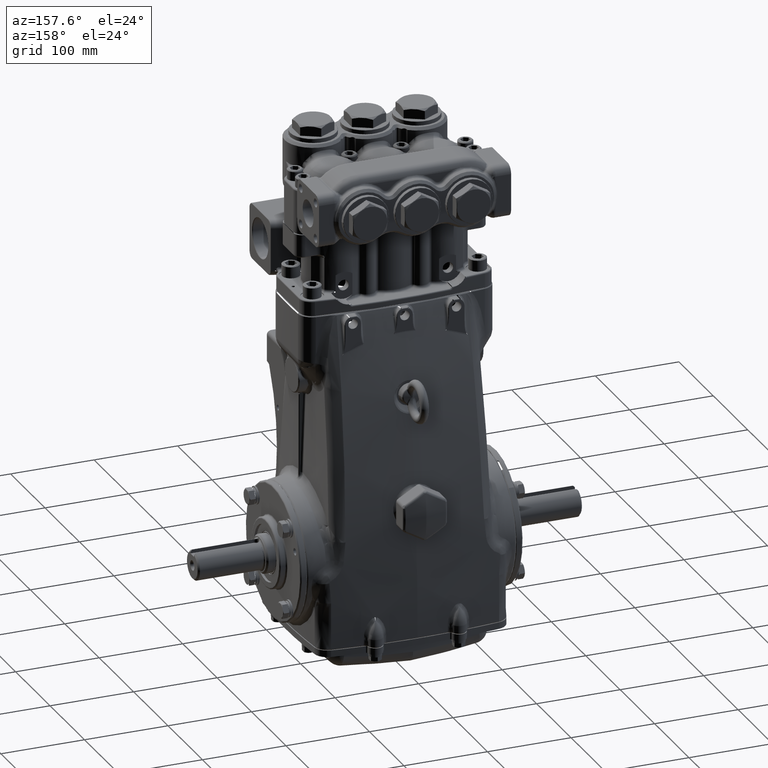
[diagram: clean part render]
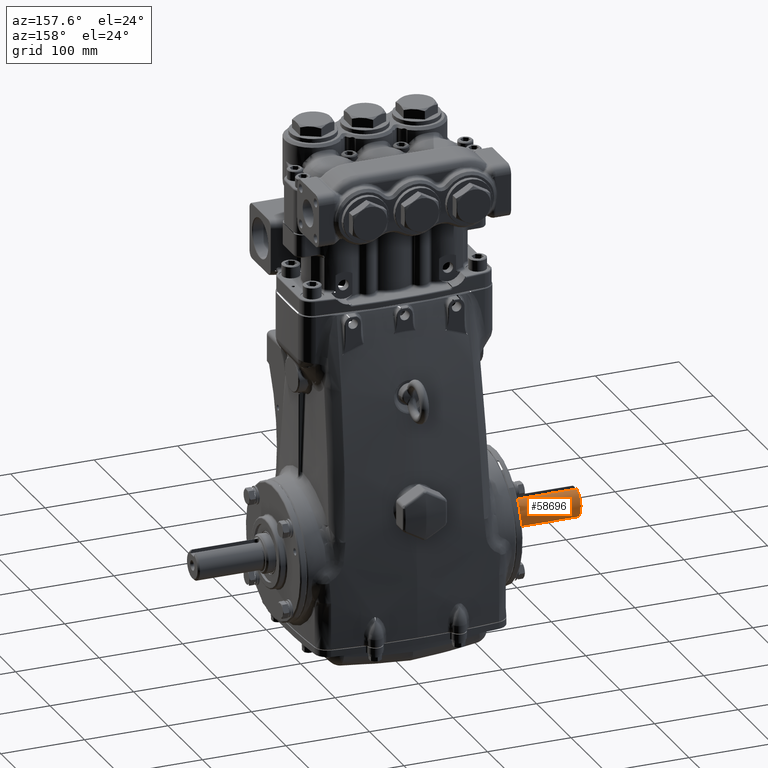
[diagram: same view with one face highlighted and labeled with its STEP entity id]
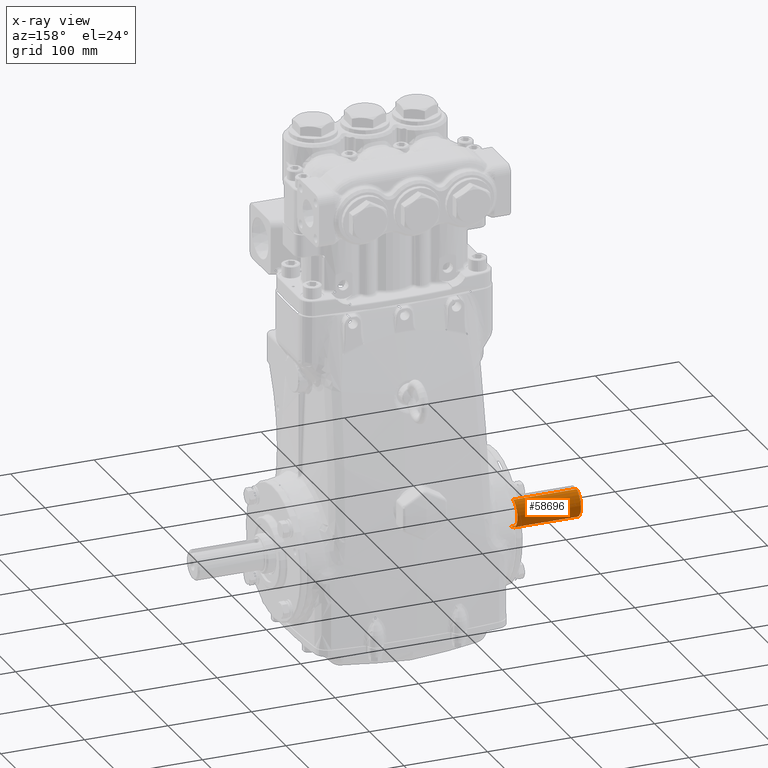
[diagram: x-ray of the same camera — body ghosted, the highlighted face saturated]
A machine part, auxiliary view. The second image highlights one B-rep face of the part: STEP entity #58696.
The next image is the same camera in x-ray: the body ghosted, the highlighted face saturated — about 0% of this face is hidden behind the body in this view.
In plain terms, the highlighted cylindrical surface (edge-blend (fillet) strip) has radius 17.5 mm, axis along (1, -0, -0).
Its self-contained STEP definition (entity closure, byte-faithful):
#3739 = CARTESIAN_POINT ( 'NONE',  ( -6.030096709648472775, 0.1792161730827915023, 0.6652784150168924437 ) ) ;
#3885 = CARTESIAN_POINT ( 'NONE',  ( -9.064960629921257507, 1.247019192167489158E-16, 2.958535915340133546E-16 ) ) ;
#9708 = B_SPLINE_CURVE_WITH_KNOTS ( 'NONE', 3,
 ( #24561, #66846, #109109, #14138, #56453, #98722, #3739, #46057, #88351, #130618 ),
 .UNSPECIFIED., .F., .F.,
 ( 4, 2, 2, 2, 4 ),
 ( 0.02357046022046372161, 0.02437403554017592705, 0.02517761085988813596, 0.02598118617960034488, 0.02678476149931255032 ),
 .UNSPECIFIED. ) ;
#14138 = CARTESIAN_POINT ( 'NONE',  ( -6.070242191542488897, 0.1926149650089243603, 0.6615066368213938786 ) ) ;
#14582 = CARTESIAN_POINT ( 'NONE',  ( -5.994094488188974168, 0.1574803149606301689, 0.6707372061968830401 ) ) ;
#15966 = EDGE_CURVE ( 'NONE', #53989, #109778, #25398, .T. ) ;
#16710 = DIRECTION ( 'NONE',  ( 1.000000000000000000, -0.0000000000000000000, -0.0000000000000000000 ) ) ;
#17834 = AXIS2_PLACEMENT_3D ( 'NONE', #42345, #84605, #126865 ) ;
#20677 = ORIENTED_EDGE ( 'NONE', *, *, #54306, .T. ) ;
#24561 = CARTESIAN_POINT ( 'NONE',  ( -6.112204724409446399, 0.1968503937007875793, 0.6602562925688360007 ) ) ;
#25398 = CIRCLE ( 'NONE', #102881, 0.6889763779527561249 ) ;
#31285 = DIRECTION ( 'NONE',  ( -1.000000000000000000, -0.0000000000000000000, -0.0000000000000000000 ) ) ;
#36503 = CARTESIAN_POINT ( 'NONE',  ( -8.986220472440942686, 0.1968503937007875793, 0.6602562925688360007 ) ) ;
#40660 = DIRECTION ( 'NONE',  ( 1.000000000000000000, -0.0000000000000000000, -0.0000000000000000000 ) ) ;
#42345 = CARTESIAN_POINT ( 'NONE',  ( -8.986220472440942686, 1.247019192167489158E-16, 2.958535915340133546E-16 ) ) ;
#46057 = CARTESIAN_POINT ( 'NONE',  ( -6.011511536557696544, 0.1694728435551889068, 0.6678268948456239640 ) ) ;
#46203 = DIRECTION ( 'NONE',  ( 1.000000000000000000, -0.0000000000000000000, -0.0000000000000000000 ) ) ;
#48570 = VECTOR ( 'NONE', #16710, 39.37007874015748143 ) ;
#53989 = VERTEX_POINT ( 'NONE', #14582 ) ;
#54306 = EDGE_CURVE ( 'NONE', #101591, #120004, #77606, .T. ) ;
#54825 = EDGE_CURVE ( 'NONE', #76929, #53989, #9708, .T. ) ;
#56453 = CARTESIAN_POINT ( 'NONE',  ( -6.059838529839572274, 0.1900524935405055182, 0.6622542245160498720 ) ) ;
#56601 = FACE_OUTER_BOUND ( 'NONE', #116151, .T. ) ;
#58696 = ADVANCED_FACE ( 'NONE', ( #56601 ), #98862, .T. ) ;
#63408 = ORIENTED_EDGE ( 'NONE', *, *, #54825, .T. ) ;
#66846 = CARTESIAN_POINT ( 'NONE',  ( -6.101584861905443802, 0.1968503937007876070, 0.6602562925688360007 ) ) ;
#67598 = CARTESIAN_POINT ( 'NONE',  ( -8.986220472440942686, 1.247019192167489158E-16, -0.6889763779527559029 ) ) ;
#69414 = LINE ( 'NONE', #111683, #48570 ) ;
#73539 = DIRECTION ( 'NONE',  ( 0.0000000000000000000, 0.0000000000000000000, -1.000000000000000000 ) ) ;
#76929 = VERTEX_POINT ( 'NONE', #85043 ) ;
#77606 = CIRCLE ( 'NONE', #17834, 0.6889763779527561249 ) ;
#84605 = DIRECTION ( 'NONE',  ( 1.000000000000000000, 0.0000000000000000000, 0.0000000000000000000 ) ) ;
#85043 = CARTESIAN_POINT ( 'NONE',  ( -6.112204724409446399, 0.1968503937007875793, 0.6602562925688360007 ) ) ;
#86670 = VECTOR ( 'NONE', #40660, 39.37007874015748143 ) ;
#88351 = CARTESIAN_POINT ( 'NONE',  ( -6.002514865728548976, 0.1637955981153098872, 0.6692544603896189992 ) ) ;
#88494 = DIRECTION ( 'NONE',  ( 0.0000000000000000000, 0.0000000000000000000, -1.000000000000000000 ) ) ;
#90887 = ORIENTED_EDGE ( 'NONE', *, *, #15966, .T. ) ;
#92040 = EDGE_CURVE ( 'NONE', #120004, #76929, #93328, .T. ) ;
#93328 = LINE ( 'NONE', #135600, #86670 ) ;
#98722 = CARTESIAN_POINT ( 'NONE',  ( -6.039756187563379619, 0.1833395160448448580, 0.6641439829184337951 ) ) ;
#98862 = CYLINDRICAL_SURFACE ( 'NONE', #126984, 0.6889763779527561249 ) ;
#101591 = VERTEX_POINT ( 'NONE', #67598 ) ;
#102881 = AXIS2_PLACEMENT_3D ( 'NONE', #126241, #31285, #73539 ) ;
#105724 = EDGE_CURVE ( 'NONE', #101591, #109778, #69414, .T. ) ;
#109109 = CARTESIAN_POINT ( 'NONE',  ( -6.091069338741239569, 0.1959966182939283097, 0.6605125895253513013 ) ) ;
#109778 = VERTEX_POINT ( 'NONE', #136057 ) ;
#111683 = CARTESIAN_POINT ( 'NONE',  ( -9.064960629921257507, 1.247019192167489158E-16, -0.6889763779527559029 ) ) ;
#116151 = EDGE_LOOP ( 'NONE', ( #131651, #20677, #123199, #63408, #90887 ) ) ;
#120004 = VERTEX_POINT ( 'NONE', #36503 ) ;
#123199 = ORIENTED_EDGE ( 'NONE', *, *, #92040, .T. ) ;
#126241 = CARTESIAN_POINT ( 'NONE',  ( -5.994094488188974168, 1.247019192167489158E-16, 2.958535915340133546E-16 ) ) ;
#126865 = DIRECTION ( 'NONE',  ( 0.0000000000000000000, 8.881784197001252323E-16, 1.000000000000000000 ) ) ;
#126984 = AXIS2_PLACEMENT_3D ( 'NONE', #3885, #46203, #88494 ) ;
#130618 = CARTESIAN_POINT ( 'NONE',  ( -5.994094488188974168, 0.1574803149606301689, 0.6707372061968830401 ) ) ;
#131651 = ORIENTED_EDGE ( 'NONE', *, *, #105724, .F. ) ;
#135600 = CARTESIAN_POINT ( 'NONE',  ( -9.064960629921257507, 0.1968503937007875793, 0.6602562925688360007 ) ) ;
#136057 = CARTESIAN_POINT ( 'NONE',  ( -5.994094488188974168, 1.247019192167489158E-16, -0.6889763779527559029 ) ) ;